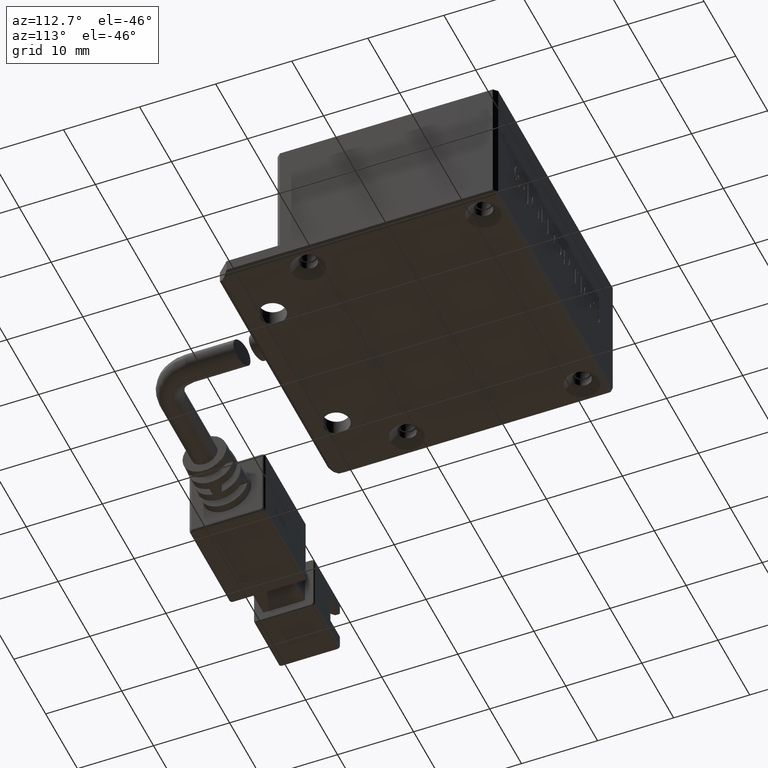
[diagram: clean part render]
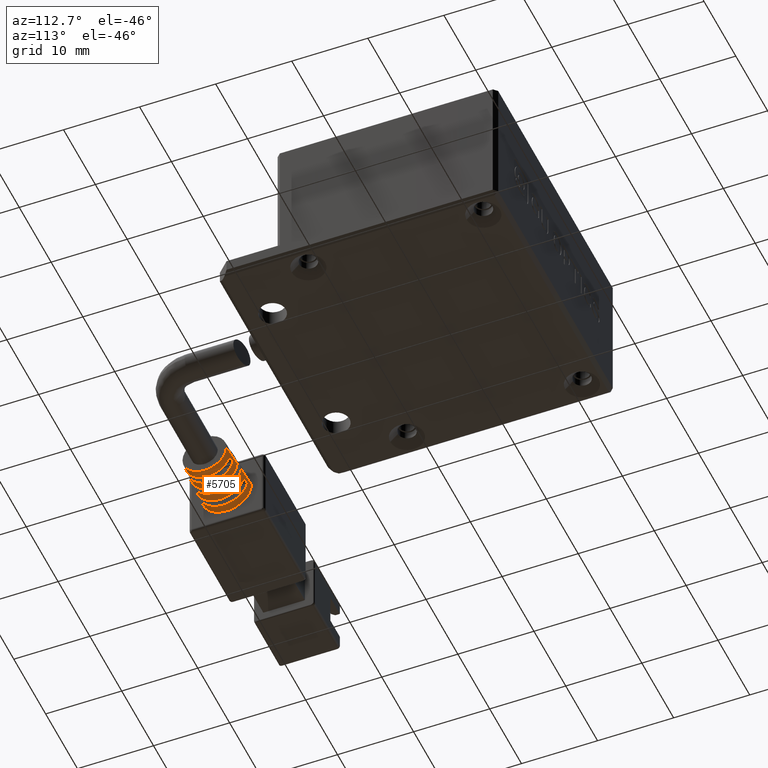
[diagram: same view with one face highlighted and labeled with its STEP entity id]
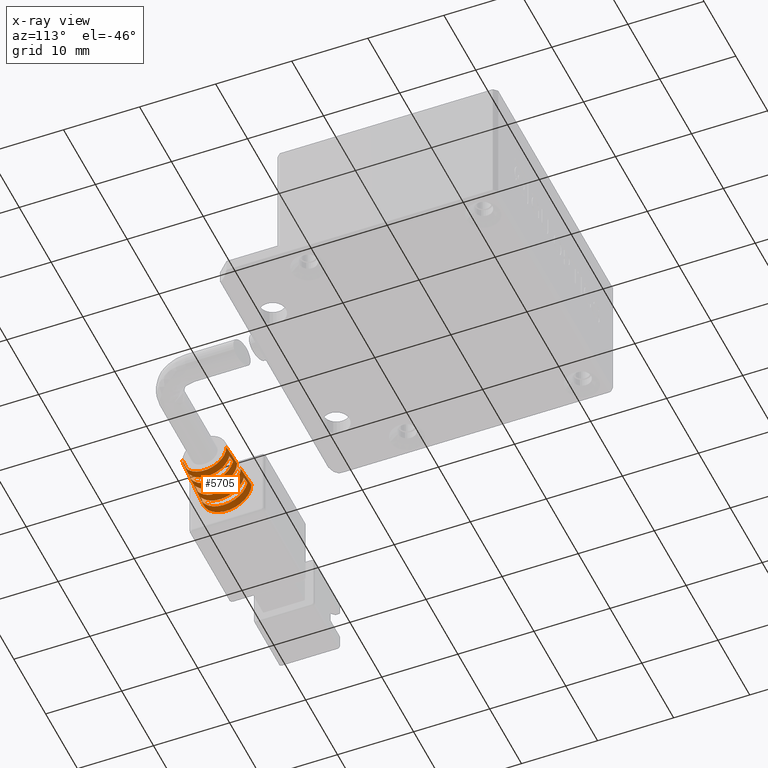
[diagram: x-ray of the same camera — body ghosted, the highlighted face saturated]
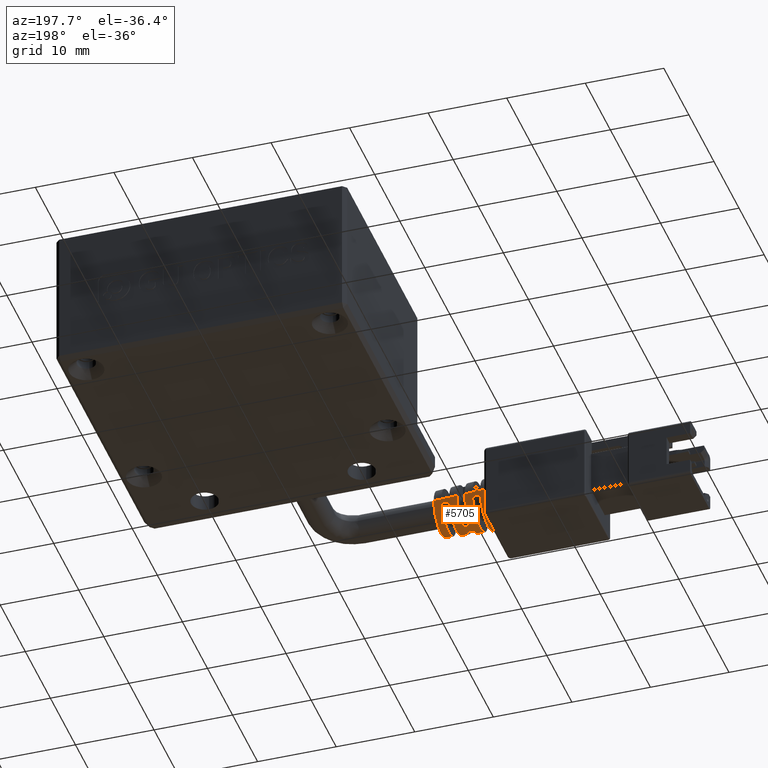
[diagram: same view with one face highlighted and labeled with its STEP entity id]
A machine part, auxiliary view. The second image highlights one B-rep face of the part: STEP entity #5705.
The next image is the same camera in x-ray: the body ghosted, the highlighted face saturated — about 0% of this face is hidden behind the body in this view.
A second angle (auxiliary view) of the same face is appended — the face is thin or edge-on in the first view.
In plain terms, the highlighted conical surface has half-angle 3 deg.
Its self-contained STEP definition (entity closure, byte-faithful):
#15 = CIRCLE ( 'NONE', #14510, 2.987961103584790800 ) ;
#100 = VERTEX_POINT ( 'NONE', #15376 ) ;
#277 = ORIENTED_EDGE ( 'NONE', *, *, #4598, .T. ) ;
#325 = DIRECTION ( 'NONE',  ( -1.000000000000000000, -6.162975822039154700E-033, -5.345529420184391300E-049 ) ) ;
#522 = CARTESIAN_POINT ( 'NONE',  ( -19.52940053457408000, -34.91285098769584700, 3.399999999983630300 ) ) ;
#683 = EDGE_CURVE ( 'NONE', #10048, #13620, #8138, .T. ) ;
#710 = CARTESIAN_POINT ( 'NONE',  ( -17.52940053456645600, -38.65364642993505800, 0.9659816279322299700 ) ) ;
#759 = DIRECTION ( 'NONE',  ( 1.000000000000000000, 6.162975822039154700E-033, 5.345529420184391300E-049 ) ) ;
#881 = ORIENTED_EDGE ( 'NONE', *, *, #3002, .F. ) ;
#908 = EDGE_CURVE ( 'NONE', #7087, #3008, #11704, .T. ) ;
#975 = CARTESIAN_POINT ( 'NONE',  ( -16.86273354202422700, -38.65364642993505800, 1.001602699982234700 ) ) ;
#1348 = VERTEX_POINT ( 'NONE', #710 ) ;
#1401 = VERTEX_POINT ( 'NONE', #11917 ) ;
#1497 = EDGE_LOOP ( 'NONE', ( #7279, #18504, #15911, #3604 ) ) ;
#1647 = DIRECTION ( 'NONE',  ( -1.000000000000000000, -6.162975822039154700E-033, -5.345529420184391300E-049 ) ) ;
#1674 = CARTESIAN_POINT ( 'NONE',  ( -20.52940053432780200, -34.80364642994796000, 3.999999999983631300 ) ) ;
#1806 = ORIENTED_EDGE ( 'NONE', *, *, #18957, .T. ) ;
#1818 = B_SPLINE_CURVE_WITH_KNOTS ( 'NONE', 3,
 ( #15812, #4901, #8050, #18895 ),
 .UNSPECIFIED., .F., .F.,
 ( 4, 4 ),
 ( 2.331347021169815300E-015, 0.001001423258043081200 ),
 .UNSPECIFIED. ) ;
#2168 = VERTEX_POINT ( 'NONE', #19659 ) ;
#2288 = CONICAL_SURFACE ( 'NONE', #18672, 3.249999999987096500, 0.05235987755968116900 ) ;
#2689 = B_SPLINE_CURVE_WITH_KNOTS ( 'NONE', 3,
 ( #6918, #5360, #16274, #17789 ),
 .UNSPECIFIED., .F., .F.,
 ( 4, 4 ),
 ( 2.814395180234999500E-015, 0.001001431039903073800 ),
 .UNSPECIFIED. ) ;
#2760 = CARTESIAN_POINT ( 'NONE',  ( -20.52940053432780200, -38.05364642993505700, 3.999999999983630400 ) ) ;
#2997 = ORIENTED_EDGE ( 'NONE', *, *, #683, .T. ) ;
#3002 = EDGE_CURVE ( 'NONE', #17974, #17411, #15512, .T. ) ;
#3008 = VERTEX_POINT ( 'NONE', #12632 ) ;
#3349 = ORIENTED_EDGE ( 'NONE', *, *, #13430, .T. ) ;
#3411 = DIRECTION ( 'NONE',  ( -1.000000000000000000, -6.162975822039154700E-033, -5.345529420184391300E-049 ) ) ;
#3425 = CARTESIAN_POINT ( 'NONE',  ( -18.52940053455040100, -34.96622271903431300, 3.399999999983630300 ) ) ;
#3435 = CARTESIAN_POINT ( 'NONE',  ( -17.52940053456927300, -34.96086976778398300, 3.999999999983631300 ) ) ;
#3457 = VECTOR ( 'NONE', #17952, 1000.000000000000200 ) ;
#3604 = ORIENTED_EDGE ( 'NONE', *, *, #18801, .T. ) ;
#3670 = EDGE_CURVE ( 'NONE', #17008, #13620, #19505, .T. ) ;
#3703 = B_SPLINE_CURVE_WITH_KNOTS ( 'NONE', 3,
 ( #11897, #975, #7240, #18081 ),
 .UNSPECIFIED., .F., .F.,
 ( 4, 4 ),
 ( 1.969985609253608900E-015, 0.001001426938979561100 ),
 .UNSPECIFIED. ) ;
#3875 = DIRECTION ( 'NONE',  ( 0.0000000000000000000, -1.000000000000000000, 0.0000000000000000000 ) ) ;
#3924 = CARTESIAN_POINT ( 'NONE',  ( -13.52940053455017600, -38.05364642993505700, 3.999999999983630400 ) ) ;
#3995 = EDGE_CURVE ( 'NONE', #14608, #10048, #9020, .T. ) ;
#4102 = VERTEX_POINT ( 'NONE', #6043 ) ;
#4172 = ORIENTED_EDGE ( 'NONE', *, *, #11452, .T. ) ;
#4216 = AXIS2_PLACEMENT_3D ( 'NONE', #11000, #1647, #12604 ) ;
#4357 = ORIENTED_EDGE ( 'NONE', *, *, #8534, .T. ) ;
#4375 = EDGE_CURVE ( 'NONE', #6258, #12158, #2689, .T. ) ;
#4406 = DIRECTION ( 'NONE',  ( 0.0000000000000000000, -1.000000000000000000, 0.0000000000000000000 ) ) ;
#4537 = ORIENTED_EDGE ( 'NONE', *, *, #8346, .T. ) ;
#4598 = EDGE_CURVE ( 'NONE', #2168, #12494, #12150, .T. ) ;
#4732 = CARTESIAN_POINT ( 'NONE',  ( -14.52940053456927500, -35.18006446315163800, 3.399999999983630300 ) ) ;
#4734 = CARTESIAN_POINT ( 'NONE',  ( -19.52940053456699900, -41.19444187217389000, 3.399999999983629500 ) ) ;
#4747 = ORIENTED_EDGE ( 'NONE', *, *, #11756, .T. ) ;
#4901 = CARTESIAN_POINT ( 'NONE',  ( -19.19606691330625000, -41.17665669055632100, 3.399999999983629500 ) ) ;
#4931 = AXIS2_PLACEMENT_3D ( 'NONE', #6465, #17363, #8052 ) ;
#5030 = EDGE_CURVE ( 'NONE', #20009, #100, #10388, .T. ) ;
#5088 = CARTESIAN_POINT ( 'NONE',  ( -17.52940053456222800, -37.45364642993506300, 0.9659816279324554600 ) ) ;
#5271 = CARTESIAN_POINT ( 'NONE',  ( -16.52940053454563000, -38.65364642993505800, 1.019422380812207200 ) ) ;
#5359 = DIRECTION ( 'NONE',  ( 1.000000000000000000, 6.162975822039154700E-033, 5.345529420184391300E-049 ) ) ;
#5360 = CARTESIAN_POINT ( 'NONE',  ( -14.86273350399157200, -35.16221848270946300, 3.399999999983630300 ) ) ;
#5479 = DIRECTION ( 'NONE',  ( 0.0000000000000000000, -1.000000000000000000, 0.0000000000000000000 ) ) ;
#5580 = CARTESIAN_POINT ( 'NONE',  ( -16.52940053453607700, -41.09401531280149600, 3.999999999983630400 ) ) ;
#5594 = ORIENTED_EDGE ( 'NONE', *, *, #5030, .T. ) ;
#5705 = ADVANCED_FACE ( 'NONE', ( #8410, #16691, #17148 ), #2288, .T. ) ;
#6043 = CARTESIAN_POINT ( 'NONE',  ( -16.52940053453988200, -37.45364642993506300, 1.019422380812514700 ) ) ;
#6258 = VERTEX_POINT ( 'NONE', #4732 ) ;
#6465 = CARTESIAN_POINT ( 'NONE',  ( -17.52940053456927300, -38.05364642993505700, 3.999999999983630400 ) ) ;
#6616 = CIRCLE ( 'NONE', #11286, 3.040368882866441200 ) ;
#6918 = CARTESIAN_POINT ( 'NONE',  ( -14.52940053456927500, -35.18006446315163800, 3.399999999983630300 ) ) ;
#6983 = EDGE_CURVE ( 'NONE', #17008, #15553, #19227, .T. ) ;
#7087 = VERTEX_POINT ( 'NONE', #13272 ) ;
#7240 = CARTESIAN_POINT ( 'NONE',  ( -17.19606688121181300, -38.65364642993505800, 0.9837892230550183700 ) ) ;
#7279 = ORIENTED_EDGE ( 'NONE', *, *, #908, .T. ) ;
#7287 = CARTESIAN_POINT ( 'NONE',  ( -14.52940053458337200, -38.05364642993505700, 3.999999999983630400 ) ) ;
#7305 = DIRECTION ( 'NONE',  ( -0.9986295347545816000, -0.05233595624279531500, -4.539420596603597400E-018 ) ) ;
#7642 = EDGE_CURVE ( 'NONE', #1348, #14608, #8051, .T. ) ;
#7905 = EDGE_CURVE ( 'NONE', #11423, #1348, #3703, .T. ) ;
#8001 = CARTESIAN_POINT ( 'NONE',  ( -17.52940053456927300, -41.14642309208613100, 3.999999999983630400 ) ) ;
#8050 = CARTESIAN_POINT ( 'NONE',  ( -18.86273357489992400, -41.15886620670015400, 3.399999999983629900 ) ) ;
#8051 = CIRCLE ( 'NONE', #4931, 3.092776662151075500 ) ;
#8052 = DIRECTION ( 'NONE',  ( 0.0000000000000000000, -1.000000000000000000, 0.0000000000000000000 ) ) ;
#8138 = CIRCLE ( 'NONE', #13008, 3.249999999999010600 ) ;
#8244 = CARTESIAN_POINT ( 'NONE',  ( -16.86273354202424100, -37.45364642993506300, 1.001602699982234700 ) ) ;
#8317 = CARTESIAN_POINT ( 'NONE',  ( -18.52940053455040100, -34.96622271903431300, 3.399999999983630300 ) ) ;
#8346 = EDGE_CURVE ( 'NONE', #15553, #4102, #11555, .T. ) ;
#8410 = FACE_OUTER_BOUND ( 'NONE', #18887, .T. ) ;
#8464 = DIRECTION ( 'NONE',  ( 1.000000000000000000, 6.162975822039154700E-033, 5.345529420184391300E-049 ) ) ;
#8534 = EDGE_CURVE ( 'NONE', #4102, #17411, #14582, .T. ) ;
#8684 = CARTESIAN_POINT ( 'NONE',  ( -20.52940053432780200, -34.80364642994796000, 3.999999999983631300 ) ) ;
#8853 = DIRECTION ( 'NONE',  ( 0.0000000000000000000, -1.000000000000000000, 8.864036610825011600E-016 ) ) ;
#8985 = CARTESIAN_POINT ( 'NONE',  ( -16.52940053453607700, -38.05364642993505700, 3.999999999983630400 ) ) ;
#9020 = LINE ( 'NONE', #15096, #13211 ) ;
#9159 = CARTESIAN_POINT ( 'NONE',  ( -20.52940053432780200, -41.30364642992215400, 3.999999999983630400 ) ) ;
#9349 = AXIS2_PLACEMENT_3D ( 'NONE', #12777, #3411, #14329 ) ;
#9466 = DIRECTION ( 'NONE',  ( -0.9986295347545816000, 0.05233595624279531500, 1.094872672590912000E-017 ) ) ;
#9855 = CARTESIAN_POINT ( 'NONE',  ( -19.19606691330625700, -34.93063616931379300, 3.399999999983630300 ) ) ;
#10048 = VERTEX_POINT ( 'NONE', #16307 ) ;
#10092 = CARTESIAN_POINT ( 'NONE',  ( -16.52940053453607700, -38.05364642993505700, 3.999999999983630400 ) ) ;
#10323 = ORIENTED_EDGE ( 'NONE', *, *, #11189, .T. ) ;
#10388 = B_SPLINE_CURVE_WITH_KNOTS ( 'NONE', 3,
 ( #8317, #17592, #9855, #522 ),
 .UNSPECIFIED., .F., .F.,
 ( 4, 4 ),
 ( 9.380091124788226300E-016, 0.001001423258045919700 ),
 .UNSPECIFIED. ) ;
#10536 = DIRECTION ( 'NONE',  ( 0.0000000000000000000, -1.000000000000000000, -1.996972209567748600E-015 ) ) ;
#10625 = CARTESIAN_POINT ( 'NONE',  ( -13.52940053455017600, -35.17050088491654900, 3.999999999983631300 ) ) ;
#11000 = CARTESIAN_POINT ( 'NONE',  ( -19.52940053457882300, -38.05364642993505700, 3.999999999983630400 ) ) ;
#11189 = EDGE_CURVE ( 'NONE', #100, #16931, #19763, .T. ) ;
#11247 = DIRECTION ( 'NONE',  ( 0.0000000000000000000, -1.000000000000000000, 0.0000000000000000000 ) ) ;
#11286 = AXIS2_PLACEMENT_3D ( 'NONE', #10092, #759, #11691 ) ;
#11375 = VECTOR ( 'NONE', #9466, 1000.000000000000200 ) ;
#11423 = VERTEX_POINT ( 'NONE', #5271 ) ;
#11452 = EDGE_CURVE ( 'NONE', #17974, #2168, #13522, .T. ) ;
#11555 = B_SPLINE_CURVE_WITH_KNOTS ( 'NONE', 3,
 ( #5088, #17521, #8244, #19076 ),
 .UNSPECIFIED., .F., .F.,
 ( 4, 4 ),
 ( 1.400181254570129900E-015, 0.001001426938980516500 ),
 .UNSPECIFIED. ) ;
#11654 = VECTOR ( 'NONE', #20008, 1000.000000000000200 ) ;
#11691 = DIRECTION ( 'NONE',  ( 0.0000000000000000000, -1.000000000000000000, 0.0000000000000000000 ) ) ;
#11704 = B_SPLINE_CURVE_WITH_KNOTS ( 'NONE', 3,
 ( #18930, #18790, #18713, #12964 ),
 .UNSPECIFIED., .F., .F.,
 ( 4, 4 ),
 ( 4.726604209672303400E-016, 0.001001431039896520700 ),
 .UNSPECIFIED. ) ;
#11715 = CIRCLE ( 'NONE', #14680, 2.935553324303140400 ) ;
#11756 = EDGE_CURVE ( 'NONE', #16931, #1401, #1818, .T. ) ;
#11897 = CARTESIAN_POINT ( 'NONE',  ( -16.52940053454563000, -38.65364642993505800, 1.019422380812207200 ) ) ;
#11917 = CARTESIAN_POINT ( 'NONE',  ( -18.52940053454754800, -41.14107014083564500, 3.399999999983629900 ) ) ;
#12150 = LINE ( 'NONE', #9159, #11654 ) ;
#12158 = VERTEX_POINT ( 'NONE', #14041 ) ;
#12494 = VERTEX_POINT ( 'NONE', #5580 ) ;
#12530 = EDGE_CURVE ( 'NONE', #3008, #6258, #11715, .T. ) ;
#12604 = DIRECTION ( 'NONE',  ( 0.0000000000000000000, -1.000000000000000000, 0.0000000000000000000 ) ) ;
#12632 = CARTESIAN_POINT ( 'NONE',  ( -14.52940053457772900, -40.92722839671893100, 3.399999999983629500 ) ) ;
#12777 = CARTESIAN_POINT ( 'NONE',  ( -17.52940053456927300, -38.05364642993505700, 3.999999999983630400 ) ) ;
#12964 = CARTESIAN_POINT ( 'NONE',  ( -14.52940053457772900, -40.92722839671893100, 3.399999999983629500 ) ) ;
#13008 = AXIS2_PLACEMENT_3D ( 'NONE', #14416, #5359, #3875 ) ;
#13118 = AXIS2_PLACEMENT_3D ( 'NONE', #17747, #8464, #19301 ) ;
#13211 = VECTOR ( 'NONE', #7305, 1000.000000000000200 ) ;
#13272 = CARTESIAN_POINT ( 'NONE',  ( -15.52940053455745200, -40.98074594251315300, 3.399999999983629900 ) ) ;
#13430 = EDGE_CURVE ( 'NONE', #12494, #11423, #6616, .T. ) ;
#13522 = CIRCLE ( 'NONE', #15314, 2.883145545018506200 ) ;
#13620 = VERTEX_POINT ( 'NONE', #15087 ) ;
#14041 = CARTESIAN_POINT ( 'NONE',  ( -15.52940053455882300, -35.12654691735688300, 3.399999999983630300 ) ) ;
#14329 = DIRECTION ( 'NONE',  ( 0.0000000000000000000, -1.000000000000000000, 0.0000000000000000000 ) ) ;
#14416 = CARTESIAN_POINT ( 'NONE',  ( -20.52940053455517600, -38.05364642993505700, 3.999999999983630400 ) ) ;
#14510 = AXIS2_PLACEMENT_3D ( 'NONE', #17567, #325, #11247 ) ;
#14582 = CIRCLE ( 'NONE', #17585, 3.040368882866441200 ) ;
#14608 = VERTEX_POINT ( 'NONE', #8001 ) ;
#14680 = AXIS2_PLACEMENT_3D ( 'NONE', #7287, #18125, #8853 ) ;
#14852 = DIRECTION ( 'NONE',  ( -1.000000000000000000, -6.162975822039154700E-033, -5.345529420184391300E-049 ) ) ;
#15058 = ORIENTED_EDGE ( 'NONE', *, *, #3670, .F. ) ;
#15087 = CARTESIAN_POINT ( 'NONE',  ( -20.52940053455517600, -34.80364642993604500, 3.999999999983631300 ) ) ;
#15096 = CARTESIAN_POINT ( 'NONE',  ( -20.52940053432780200, -41.30364642992215400, 3.999999999983630400 ) ) ;
#15179 = CARTESIAN_POINT ( 'NONE',  ( -16.52940053453607700, -35.01327754706861800, 3.999999999983631300 ) ) ;
#15314 = AXIS2_PLACEMENT_3D ( 'NONE', #3924, #14852, #5479 ) ;
#15376 = CARTESIAN_POINT ( 'NONE',  ( -19.52940053457408000, -34.91285098769584700, 3.399999999983630300 ) ) ;
#15512 = LINE ( 'NONE', #1674, #11375 ) ;
#15553 = VERTEX_POINT ( 'NONE', #15776 ) ;
#15776 = CARTESIAN_POINT ( 'NONE',  ( -17.52940053456222800, -37.45364642993506300, 0.9659816279324554600 ) ) ;
#15812 = CARTESIAN_POINT ( 'NONE',  ( -19.52940053456699900, -41.19444187217389000, 3.399999999983629500 ) ) ;
#15865 = ORIENTED_EDGE ( 'NONE', *, *, #7905, .T. ) ;
#15911 = ORIENTED_EDGE ( 'NONE', *, *, #4375, .T. ) ;
#16274 = CARTESIAN_POINT ( 'NONE',  ( -15.19606684410781500, -35.14437942505667700, 3.399999999983630300 ) ) ;
#16307 = CARTESIAN_POINT ( 'NONE',  ( -20.52940053455517600, -41.30364642993406900, 3.999999999983630400 ) ) ;
#16379 = ORIENTED_EDGE ( 'NONE', *, *, #6983, .T. ) ;
#16691 = FACE_BOUND ( 'NONE', #18906, .T. ) ;
#16799 = DIRECTION ( 'NONE',  ( -1.000000000000000000, -6.162975822039154700E-033, -5.345529420184391300E-049 ) ) ;
#16931 = VERTEX_POINT ( 'NONE', #4734 ) ;
#17008 = VERTEX_POINT ( 'NONE', #3435 ) ;
#17148 = FACE_BOUND ( 'NONE', #1497, .T. ) ;
#17363 = DIRECTION ( 'NONE',  ( -1.000000000000000000, -6.162975822039154700E-033, -5.345529420184391300E-049 ) ) ;
#17411 = VERTEX_POINT ( 'NONE', #15179 ) ;
#17521 = CARTESIAN_POINT ( 'NONE',  ( -17.19606688121181600, -37.45364642993506300, 0.9837892230550183700 ) ) ;
#17567 = CARTESIAN_POINT ( 'NONE',  ( -15.52940053455972500, -38.05364642993505700, 3.999999999983630400 ) ) ;
#17585 = AXIS2_PLACEMENT_3D ( 'NONE', #8985, #19828, #10536 ) ;
#17592 = CARTESIAN_POINT ( 'NONE',  ( -18.86273357489992700, -34.94842665316996000, 3.399999999983630300 ) ) ;
#17747 = CARTESIAN_POINT ( 'NONE',  ( -18.52940053454562600, -38.05364642993505700, 3.999999999983630400 ) ) ;
#17789 = CARTESIAN_POINT ( 'NONE',  ( -15.52940053455882300, -35.12654691735688300, 3.399999999983630300 ) ) ;
#17952 = DIRECTION ( 'NONE',  ( -0.9986295347545816000, 0.05233595624279531500, 1.094872672590912000E-017 ) ) ;
#17974 = VERTEX_POINT ( 'NONE', #10625 ) ;
#18025 = CIRCLE ( 'NONE', #13118, 3.145184441432725900 ) ;
#18081 = CARTESIAN_POINT ( 'NONE',  ( -17.52940053456645600, -38.65364642993505800, 0.9659816279322299700 ) ) ;
#18088 = ORIENTED_EDGE ( 'NONE', *, *, #7642, .T. ) ;
#18125 = DIRECTION ( 'NONE',  ( 1.000000000000000000, 6.162975822039154700E-033, 5.345529420184391300E-049 ) ) ;
#18504 = ORIENTED_EDGE ( 'NONE', *, *, #12530, .T. ) ;
#18672 = AXIS2_PLACEMENT_3D ( 'NONE', #2760, #16799, #4406 ) ;
#18713 = CARTESIAN_POINT ( 'NONE',  ( -14.86273350399157200, -40.94507437716065100, 3.399999999983629500 ) ) ;
#18790 = CARTESIAN_POINT ( 'NONE',  ( -15.19606684410781500, -40.96291343481343700, 3.399999999983629900 ) ) ;
#18801 = EDGE_CURVE ( 'NONE', #12158, #7087, #15, .T. ) ;
#18887 = EDGE_LOOP ( 'NONE', ( #881, #4172, #277, #3349, #15865, #18088, #19676, #2997, #15058, #16379, #4537, #4357 ) ) ;
#18895 = CARTESIAN_POINT ( 'NONE',  ( -18.52940053454754800, -41.14107014083564500, 3.399999999983629900 ) ) ;
#18906 = EDGE_LOOP ( 'NONE', ( #4747, #1806, #5594, #10323 ) ) ;
#18930 = CARTESIAN_POINT ( 'NONE',  ( -15.52940053455745200, -40.98074594251315300, 3.399999999983629900 ) ) ;
#18957 = EDGE_CURVE ( 'NONE', #1401, #20009, #18025, .T. ) ;
#19076 = CARTESIAN_POINT ( 'NONE',  ( -16.52940053453988200, -37.45364642993506300, 1.019422380812514700 ) ) ;
#19227 = CIRCLE ( 'NONE', #9349, 3.092776662151075500 ) ;
#19301 = DIRECTION ( 'NONE',  ( 0.0000000000000000000, -1.000000000000000000, 8.273235679558057500E-016 ) ) ;
#19505 = LINE ( 'NONE', #8684, #3457 ) ;
#19659 = CARTESIAN_POINT ( 'NONE',  ( -13.52940053455017600, -40.93679197495356400, 3.999999999983630400 ) ) ;
#19676 = ORIENTED_EDGE ( 'NONE', *, *, #3995, .T. ) ;
#19763 = CIRCLE ( 'NONE', #4216, 3.197592220717360200 ) ;
#19828 = DIRECTION ( 'NONE',  ( 1.000000000000000000, 6.162975822039154700E-033, 5.345529420184391300E-049 ) ) ;
#20008 = DIRECTION ( 'NONE',  ( -0.9986295347545816000, -0.05233595624279531500, -4.539420596603597400E-018 ) ) ;
#20009 = VERTEX_POINT ( 'NONE', #3425 ) ;